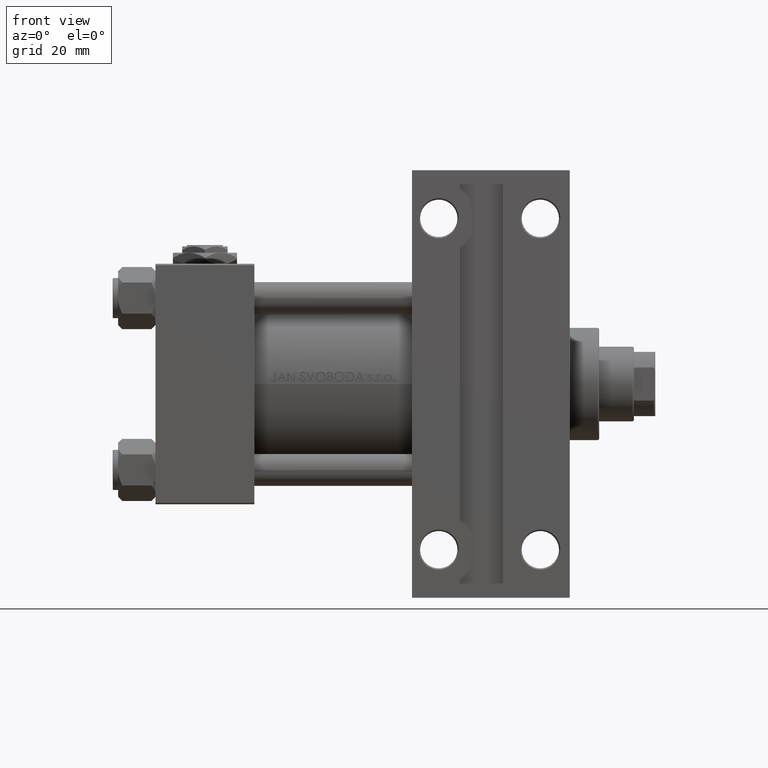
[diagram: clean part render]
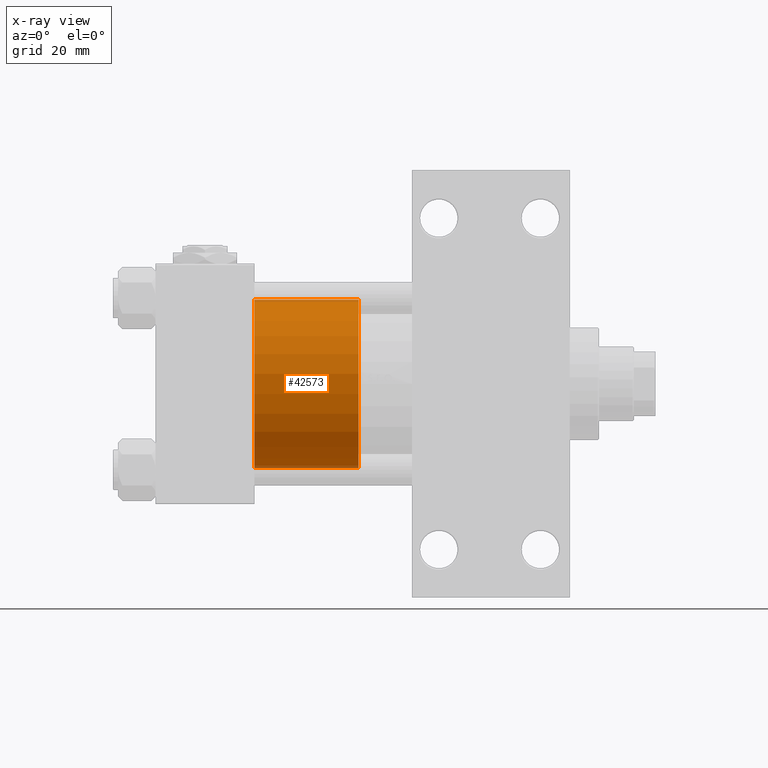
[diagram: x-ray — body ghosted, one internal face saturated and labeled with its STEP entity id]
A machine part, front view, then the same camera in x-ray: the body is ghosted and one INTERNAL B-rep face — a face not visible from any outside direction — is saturated and labeled: STEP entity #42573.
In plain terms, the highlighted cylindrical surface (partial cylindrical patch) has radius 31.5 mm, axis along (-1, 0, 0).
Its self-contained STEP definition (entity closure, byte-faithful):
#1071 = ORIENTED_EDGE ( 'NONE', *, *, #22220, .T. ) ;
#1207 = EDGE_CURVE ( 'NONE', #5625, #16584, #11441, .T. ) ;
#3305 = VECTOR ( 'NONE', #4358, 1000.000000000000000 ) ;
#3517 = DIRECTION ( 'NONE',  ( 1.000000000000000000, 0.000000000000000000, 0.000000000000000000 ) ) ;
#4358 = DIRECTION ( 'NONE',  ( -0.000000000000000000, -0.000000000000000000, -1.000000000000000000 ) ) ;
#4611 = CARTESIAN_POINT ( 'NONE',  ( 31.50000000000000000, 3.857637417314162689E-15, 39.00000000000000000 ) ) ;
#5625 = VERTEX_POINT ( 'NONE', #4611 ) ;
#11079 = CARTESIAN_POINT ( 'NONE',  ( -31.50000000000000000, 0.000000000000000000, 0.000000000000000000 ) ) ;
#11441 = LINE ( 'NONE', #38310, #11493 ) ;
#11493 = VECTOR ( 'NONE', #42346, 1000.000000000000000 ) ;
#12630 = CARTESIAN_POINT ( 'NONE',  ( -31.50000000000000000, 0.000000000000000000, 39.00000000000000000 ) ) ;
#13058 = ORIENTED_EDGE ( 'NONE', *, *, #1207, .T. ) ;
#14182 = CIRCLE ( 'NONE', #38197, 31.50000000000000000 ) ;
#16584 = VERTEX_POINT ( 'NONE', #38115 ) ;
#18274 = CIRCLE ( 'NONE', #49596, 31.50000000000000000 ) ;
#21095 = DIRECTION ( 'NONE',  ( -0.000000000000000000, -0.000000000000000000, -1.000000000000000000 ) ) ;
#22220 = EDGE_CURVE ( 'NONE', #16584, #38093, #18274, .T. ) ;
#25486 = DIRECTION ( 'NONE',  ( 0.000000000000000000, 0.000000000000000000, 1.000000000000000000 ) ) ;
#25570 = EDGE_CURVE ( 'NONE', #5625, #43786, #14182, .T. ) ;
#27867 = DIRECTION ( 'NONE',  ( -1.000000000000000000, 0.000000000000000000, 0.000000000000000000 ) ) ;
#28660 = ORIENTED_EDGE ( 'NONE', *, *, #25570, .F. ) ;
#30626 = AXIS2_PLACEMENT_3D ( 'NONE', #36165, #21095, #27867 ) ;
#32636 = EDGE_LOOP ( 'NONE', ( #28660, #13058, #1071, #41192 ) ) ;
#33511 = DIRECTION ( 'NONE',  ( 1.000000000000000000, 0.000000000000000000, 0.000000000000000000 ) ) ;
#36165 = CARTESIAN_POINT ( 'NONE',  ( 0.000000000000000000, 0.000000000000000000, 39.00000000000000000 ) ) ;
#36419 = FACE_OUTER_BOUND ( 'NONE', #32636, .T. ) ;
#37777 = LINE ( 'NONE', #42309, #3305 ) ;
#37929 = CARTESIAN_POINT ( 'NONE',  ( 0.000000000000000000, 0.000000000000000000, 39.00000000000000000 ) ) ;
#38093 = VERTEX_POINT ( 'NONE', #11079 ) ;
#38115 = CARTESIAN_POINT ( 'NONE',  ( 31.50000000000000000, 3.857637417314162689E-15, 0.000000000000000000 ) ) ;
#38197 = AXIS2_PLACEMENT_3D ( 'NONE', #37929, #42459, #3517 ) ;
#38310 = CARTESIAN_POINT ( 'NONE',  ( 31.50000000000000000, 3.857637417314162689E-15, 39.00000000000000000 ) ) ;
#41192 = ORIENTED_EDGE ( 'NONE', *, *, #44583, .F. ) ;
#42309 = CARTESIAN_POINT ( 'NONE',  ( -31.50000000000000000, 0.000000000000000000, 39.00000000000000000 ) ) ;
#42346 = DIRECTION ( 'NONE',  ( -0.000000000000000000, -0.000000000000000000, -1.000000000000000000 ) ) ;
#42459 = DIRECTION ( 'NONE',  ( 0.000000000000000000, 0.000000000000000000, 1.000000000000000000 ) ) ;
#42573 = ADVANCED_FACE ( 'NONE', ( #36419 ), #47507, .T. ) ;
#43786 = VERTEX_POINT ( 'NONE', #12630 ) ;
#44583 = EDGE_CURVE ( 'NONE', #43786, #38093, #37777, .T. ) ;
#47507 = CYLINDRICAL_SURFACE ( 'NONE', #30626, 31.50000000000000000 ) ;
#48132 = CARTESIAN_POINT ( 'NONE',  ( 0.000000000000000000, 0.000000000000000000, 0.000000000000000000 ) ) ;
#49596 = AXIS2_PLACEMENT_3D ( 'NONE', #48132, #25486, #33511 ) ;